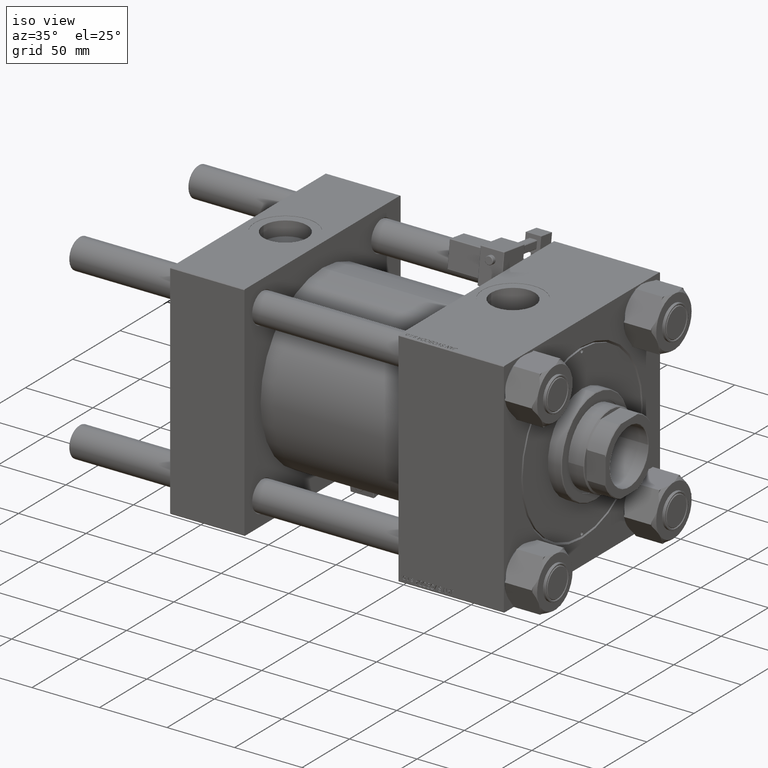
[diagram: clean part render]
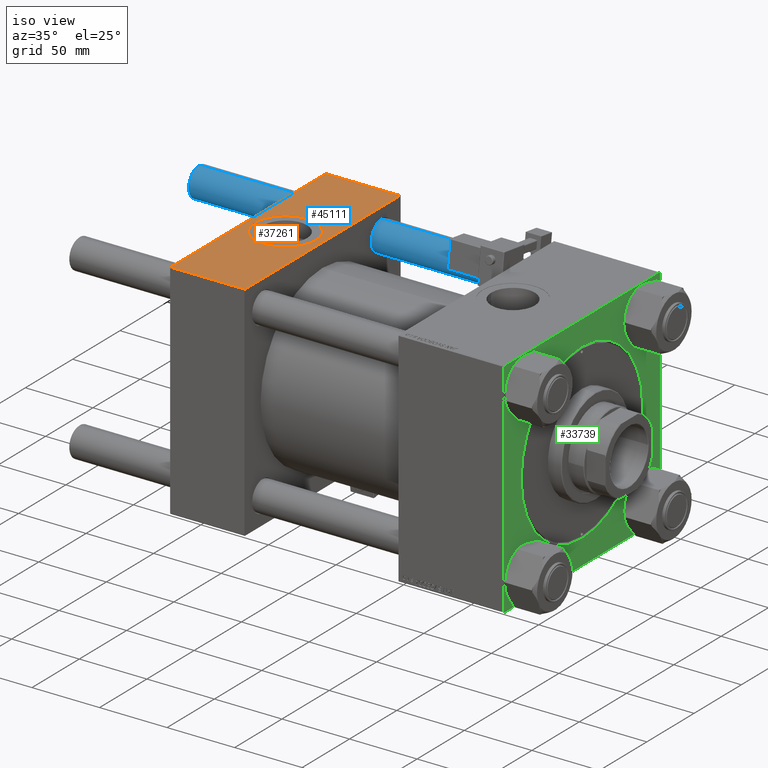
[diagram: same view with three faces highlighted in distinct colors, each labeled with its STEP entity id]
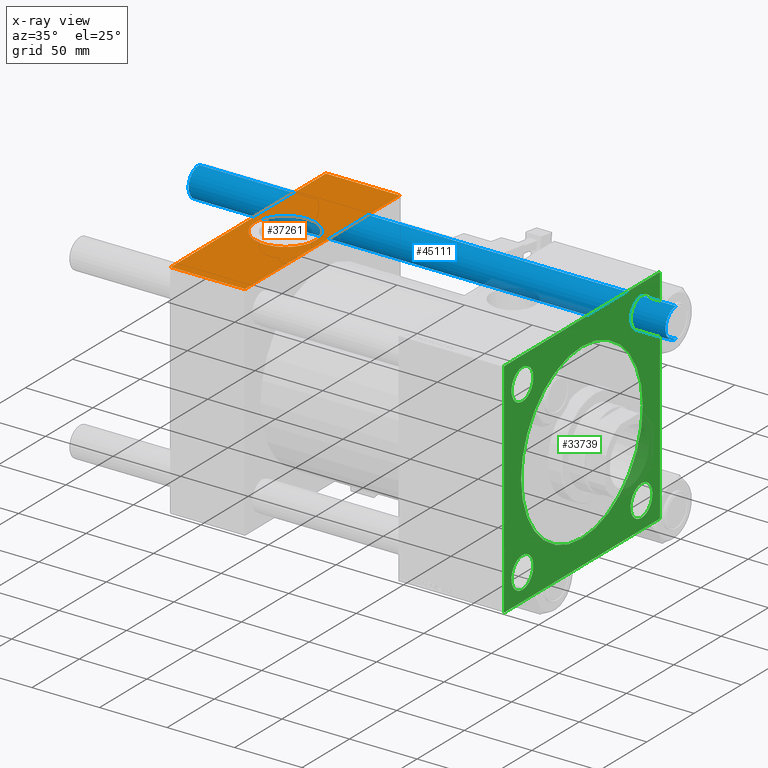
[diagram: x-ray of the same camera — body ghosted, the three highlighted faces saturated]
A machine part, iso view with three faces highlighted in distinct colors.
The next image is the same camera in x-ray (body ghosted, the three faces saturated) — at least one of them is partly hidden behind the body in this view.
Their STEP definitions:

[orange] entity #37261 — the highlighted planar face has unit normal (0, 0, -1).
#2128 = CARTESIAN_POINT ( 'NONE',  ( 0.000000000000000000, 82.00000000000005684, 82.50000000000002842 ) ) ;
#2393 = CARTESIAN_POINT ( 'NONE',  ( 0.000000000000000000, 82.00000000000005684, 82.50000000000002842 ) ) ;
#3655 = CIRCLE ( 'NONE', #23240, 22.50000000000000355 ) ;
#4659 = LINE ( 'NONE', #21439, #45771 ) ;
#6060 = AXIS2_PLACEMENT_3D ( 'NONE', #45836, #12296, #25599 ) ;
#6437 = CARTESIAN_POINT ( 'NONE',  ( 55.00000000000000000, 82.50000000000002842, 82.50000000000002842 ) ) ;
#7556 = VERTEX_POINT ( 'NONE', #23558 ) ;
#7903 = EDGE_CURVE ( 'NONE', #12894, #27906, #23098, .T. ) ;
#8107 = DIRECTION ( 'NONE',  ( 1.000000000000000000, 0.000000000000000000, 0.000000000000000000 ) ) ;
#9623 = CARTESIAN_POINT ( 'NONE',  ( 27.50000000000000000, -8.673617379884037050E-15, 82.50000000000001421 ) ) ;
#9716 = CARTESIAN_POINT ( 'NONE',  ( 50.00000000000000000, -8.673617379884037050E-15, 82.50000000000001421 ) ) ;
#12296 = DIRECTION ( 'NONE',  ( 0.000000000000000000, 0.000000000000000000, 1.000000000000000000 ) ) ;
#12894 = VERTEX_POINT ( 'NONE', #25694 ) ;
#14163 = DIRECTION ( 'NONE',  ( 0.000000000000000000, -1.000000000000000000, -8.410780489584519171E-17 ) ) ;
#14367 = FACE_OUTER_BOUND ( 'NONE', #19214, .T. ) ;
#14901 = DIRECTION ( 'NONE',  ( 0.000000000000000000, 1.000000000000000000, 8.410780489584519171E-17 ) ) ;
#15532 = LINE ( 'NONE', #48545, #32258 ) ;
#18602 = AXIS2_PLACEMENT_3D ( 'NONE', #31152, #43141, #14901 ) ;
#18926 = EDGE_CURVE ( 'NONE', #7556, #23256, #38889, .T. ) ;
#19214 = EDGE_LOOP ( 'NONE', ( #25607, #40393, #50135, #41388 ) ) ;
#21439 = CARTESIAN_POINT ( 'NONE',  ( 55.00000000000000000, -81.99999999999997158, 82.50000000000001421 ) ) ;
#21863 = CARTESIAN_POINT ( 'NONE',  ( 55.00000000000000000, -81.99999999999997158, 82.50000000000001421 ) ) ;
#22379 = PLANE ( 'NONE',  #18602 ) ;
#22855 = ORIENTED_EDGE ( 'NONE', *, *, #46805, .F. ) ;
#22895 = FACE_BOUND ( 'NONE', #26462, .T. ) ;
#22951 = LINE ( 'NONE', #6437, #33058 ) ;
#23098 = CIRCLE ( 'NONE', #6060, 22.50000000000000355 ) ;
#23110 = VERTEX_POINT ( 'NONE', #21863 ) ;
#23240 = AXIS2_PLACEMENT_3D ( 'NONE', #9623, #25872, #8107 ) ;
#23256 = VERTEX_POINT ( 'NONE', #2128 ) ;
#23558 = CARTESIAN_POINT ( 'NONE',  ( 55.00000000000000000, 82.00000000000005684, 82.50000000000002842 ) ) ;
#25599 = DIRECTION ( 'NONE',  ( 1.000000000000000000, 0.000000000000000000, 0.000000000000000000 ) ) ;
#25607 = ORIENTED_EDGE ( 'NONE', *, *, #38478, .T. ) ;
#25694 = CARTESIAN_POINT ( 'NONE',  ( 4.999999999999993783, -5.918162081802491483E-15, 82.50000000000001421 ) ) ;
#25872 = DIRECTION ( 'NONE',  ( 0.000000000000000000, 0.000000000000000000, 1.000000000000000000 ) ) ;
#26462 = EDGE_LOOP ( 'NONE', ( #22855, #44991 ) ) ;
#27906 = VERTEX_POINT ( 'NONE', #9716 ) ;
#30710 = EDGE_CURVE ( 'NONE', #38590, #23110, #4659, .T. ) ;
#31152 = CARTESIAN_POINT ( 'NONE',  ( 55.00000000000000000, 82.50000000000002842, 82.50000000000002842 ) ) ;
#32258 = VECTOR ( 'NONE', #52279, 1000.000000000000000 ) ;
#33058 = VECTOR ( 'NONE', #14163, 1000.000000000000000 ) ;
#36195 = EDGE_CURVE ( 'NONE', #7556, #23110, #22951, .T. ) ;
#37261 = ADVANCED_FACE ( 'NONE', ( #22895, #14367 ), #22379, .F. ) ;
#38478 = EDGE_CURVE ( 'NONE', #23256, #38590, #15532, .T. ) ;
#38590 = VERTEX_POINT ( 'NONE', #42156 ) ;
#38889 = LINE ( 'NONE', #2393, #42073 ) ;
#40393 = ORIENTED_EDGE ( 'NONE', *, *, #30710, .T. ) ;
#41388 = ORIENTED_EDGE ( 'NONE', *, *, #18926, .T. ) ;
#41676 = DIRECTION ( 'NONE',  ( 1.000000000000000000, 0.000000000000000000, 0.000000000000000000 ) ) ;
#42073 = VECTOR ( 'NONE', #43152, 1000.000000000000000 ) ;
#42156 = CARTESIAN_POINT ( 'NONE',  ( 0.000000000000000000, -81.99999999999997158, 82.50000000000001421 ) ) ;
#43141 = DIRECTION ( 'NONE',  ( 0.000000000000000000, 8.410780489584519171E-17, -1.000000000000000000 ) ) ;
#43152 = DIRECTION ( 'NONE',  ( -1.000000000000000000, 0.000000000000000000, 0.000000000000000000 ) ) ;
#44991 = ORIENTED_EDGE ( 'NONE', *, *, #7903, .F. ) ;
#45771 = VECTOR ( 'NONE', #41676, 1000.000000000000000 ) ;
#45836 = CARTESIAN_POINT ( 'NONE',  ( 27.50000000000000000, -8.673617379884037050E-15, 82.50000000000001421 ) ) ;
#46805 = EDGE_CURVE ( 'NONE', #27906, #12894, #3655, .T. ) ;
#48545 = CARTESIAN_POINT ( 'NONE',  ( 0.000000000000000000, 82.50000000000002842, 82.50000000000002842 ) ) ;
#50135 = ORIENTED_EDGE ( 'NONE', *, *, #36195, .F. ) ;
#52279 = DIRECTION ( 'NONE',  ( 0.000000000000000000, -1.000000000000000000, -8.410780489584519171E-17 ) ) ;

[blue] entity #45111 — the highlighted cylindrical surface (edge-blend (fillet) strip) has radius 11 mm, axis along (-1, -0, -0).
#3055 = DIRECTION ( 'NONE',  ( 1.000000000000000000, 0.000000000000000000, 0.000000000000000000 ) ) ;
#3921 = DIRECTION ( 'NONE',  ( -0.000000000000000000, -0.000000000000000000, -1.000000000000000000 ) ) ;
#4369 = DIRECTION ( 'NONE',  ( 1.000000000000000000, 0.000000000000000000, 0.000000000000000000 ) ) ;
#7835 = DIRECTION ( 'NONE',  ( 0.000000000000000000, 0.000000000000000000, -1.000000000000000000 ) ) ;
#8132 = DIRECTION ( 'NONE',  ( -0.000000000000000000, -0.000000000000000000, -1.000000000000000000 ) ) ;
#8873 = CIRCLE ( 'NONE', #34424, 11.00000000000000000 ) ;
#9620 = EDGE_LOOP ( 'NONE', ( #33986, #29284, #35812, #20055 ) ) ;
#10086 = CARTESIAN_POINT ( 'NONE',  ( -11.00000000000000000, 0.000000000000000000, 0.5000000000001114664 ) ) ;
#10750 = LINE ( 'NONE', #32044, #44269 ) ;
#12304 = CARTESIAN_POINT ( 'NONE',  ( 0.000000000000000000, 0.000000000000000000, 0.5000000000001114664 ) ) ;
#12384 = VECTOR ( 'NONE', #8132, 1000.000000000000000 ) ;
#16066 = VERTEX_POINT ( 'NONE', #10086 ) ;
#17186 = CARTESIAN_POINT ( 'NONE',  ( -11.00000000000000000, 0.000000000000000000, 353.5000000000000568 ) ) ;
#18115 = AXIS2_PLACEMENT_3D ( 'NONE', #44338, #7835, #4369 ) ;
#18637 = EDGE_CURVE ( 'NONE', #16066, #24030, #8873, .T. ) ;
#19447 = VERTEX_POINT ( 'NONE', #42773 ) ;
#20055 = ORIENTED_EDGE ( 'NONE', *, *, #18637, .T. ) ;
#21174 = CARTESIAN_POINT ( 'NONE',  ( -11.00000000000000000, 0.000000000000000000, 354.0000000000000000 ) ) ;
#23000 = DIRECTION ( 'NONE',  ( -0.000000000000000000, -0.000000000000000000, -1.000000000000000000 ) ) ;
#24030 = VERTEX_POINT ( 'NONE', #29019 ) ;
#25605 = EDGE_CURVE ( 'NONE', #36673, #16066, #29167, .T. ) ;
#28269 = AXIS2_PLACEMENT_3D ( 'NONE', #40677, #3921, #36404 ) ;
#29019 = CARTESIAN_POINT ( 'NONE',  ( 11.00000000000000000, 1.347111479062088405E-15, 0.5000000000001114664 ) ) ;
#29167 = LINE ( 'NONE', #21174, #12384 ) ;
#29284 = ORIENTED_EDGE ( 'NONE', *, *, #46880, .T. ) ;
#32044 = CARTESIAN_POINT ( 'NONE',  ( 11.00000000000000000, 1.347111479062088405E-15, 354.0000000000000000 ) ) ;
#33062 = DIRECTION ( 'NONE',  ( -0.000000000000000000, -0.000000000000000000, 1.000000000000000000 ) ) ;
#33986 = ORIENTED_EDGE ( 'NONE', *, *, #41043, .F. ) ;
#34424 = AXIS2_PLACEMENT_3D ( 'NONE', #12304, #33062, #3055 ) ;
#35812 = ORIENTED_EDGE ( 'NONE', *, *, #25605, .T. ) ;
#36404 = DIRECTION ( 'NONE',  ( -1.000000000000000000, 0.000000000000000000, 0.000000000000000000 ) ) ;
#36673 = VERTEX_POINT ( 'NONE', #17186 ) ;
#40677 = CARTESIAN_POINT ( 'NONE',  ( 0.000000000000000000, 0.000000000000000000, 354.0000000000000000 ) ) ;
#41043 = EDGE_CURVE ( 'NONE', #19447, #24030, #10750, .T. ) ;
#42773 = CARTESIAN_POINT ( 'NONE',  ( 11.00000000000000000, 1.347111479062088405E-15, 353.5000000000000568 ) ) ;
#44269 = VECTOR ( 'NONE', #23000, 1000.000000000000000 ) ;
#44338 = CARTESIAN_POINT ( 'NONE',  ( 0.000000000000000000, 0.000000000000000000, 353.5000000000000568 ) ) ;
#45111 = ADVANCED_FACE ( 'NONE', ( #52649 ), #48402, .T. ) ;
#46880 = EDGE_CURVE ( 'NONE', #19447, #36673, #48752, .T. ) ;
#48402 = CYLINDRICAL_SURFACE ( 'NONE', #28269, 11.00000000000000000 ) ;
#48752 = CIRCLE ( 'NONE', #18115, 11.00000000000000000 ) ;
#52649 = FACE_OUTER_BOUND ( 'NONE', #9620, .T. ) ;

[green] entity #33739 — the highlighted planar face has unit normal (-1, 0, 0).
#367 = EDGE_CURVE ( 'NONE', #7603, #32426, #20254, .T. ) ;
#387 = ORIENTED_EDGE ( 'NONE', *, *, #21691, .T. ) ;
#595 = DIRECTION ( 'NONE',  ( -1.000000000000000000, -0.000000000000000000, 0.000000000000000000 ) ) ;
#1123 = VECTOR ( 'NONE', #13540, 1000.000000000000000 ) ;
#1209 = DIRECTION ( 'NONE',  ( 0.000000000000000000, 0.000000000000000000, 1.000000000000000000 ) ) ;
#1259 = ORIENTED_EDGE ( 'NONE', *, *, #49738, .T. ) ;
#1695 = FACE_BOUND ( 'NONE', #7015, .T. ) ;
#2137 = CARTESIAN_POINT ( 'NONE',  ( 247.0000000000000000, 81.99999999999995737, 82.50000000000000000 ) ) ;
#2269 = ORIENTED_EDGE ( 'NONE', *, *, #17421, .T. ) ;
#3141 = CARTESIAN_POINT ( 'NONE',  ( 247.0000000000000000, -62.94999999999998153, 51.45000000000000995 ) ) ;
#3710 = CIRCLE ( 'NONE', #4544, 11.50000000000001066 ) ;
#3838 = CIRCLE ( 'NONE', #51463, 11.50000000000001066 ) ;
#4051 = DIRECTION ( 'NONE',  ( 0.000000000000000000, 0.000000000000000000, 1.000000000000000000 ) ) ;
#4257 = CARTESIAN_POINT ( 'NONE',  ( 247.0000000000000000, 62.95000000000000284, -51.44999999999999574 ) ) ;
#4534 = DIRECTION ( 'NONE',  ( 0.000000000000000000, -1.682156097916903834E-16, -1.000000000000000000 ) ) ;
#4544 = AXIS2_PLACEMENT_3D ( 'NONE', #18383, #50617, #25862 ) ;
#5139 = CARTESIAN_POINT ( 'NONE',  ( 247.0000000000000000, -81.99999999999995737, 82.49999999999997158 ) ) ;
#5262 = LINE ( 'NONE', #9793, #21937 ) ;
#5448 = AXIS2_PLACEMENT_3D ( 'NONE', #17706, #34725, #1209 ) ;
#5728 = CARTESIAN_POINT ( 'NONE',  ( 247.0000000000000000, -62.94999999999998153, 74.45000000000003126 ) ) ;
#6844 = EDGE_LOOP ( 'NONE', ( #22074, #22592, #44700, #35331, #19047, #15460, #31609, #50530 ) ) ;
#6855 = VERTEX_POINT ( 'NONE', #29909 ) ;
#7015 = EDGE_LOOP ( 'NONE', ( #20679, #387 ) ) ;
#7603 = VERTEX_POINT ( 'NONE', #48050 ) ;
#7802 = CARTESIAN_POINT ( 'NONE',  ( 247.0000000000000000, 62.95000000000000284, 62.95000000000000284 ) ) ;
#7831 = AXIS2_PLACEMENT_3D ( 'NONE', #21436, #24909, #8919 ) ;
#7956 = VERTEX_POINT ( 'NONE', #42362 ) ;
#7983 = VERTEX_POINT ( 'NONE', #34367 ) ;
#8037 = EDGE_LOOP ( 'NONE', ( #1259, #14242 ) ) ;
#8919 = DIRECTION ( 'NONE',  ( 0.000000000000000000, 0.000000000000000000, 1.000000000000000000 ) ) ;
#9793 = CARTESIAN_POINT ( 'NONE',  ( 247.0000000000000000, 82.50000000000001421, -82.00000000000002842 ) ) ;
#10462 = FACE_BOUND ( 'NONE', #35192, .T. ) ;
#10463 = DIRECTION ( 'NONE',  ( -1.000000000000000000, -0.000000000000000000, 0.000000000000000000 ) ) ;
#10641 = EDGE_CURVE ( 'NONE', #7983, #44092, #25838, .T. ) ;
#11308 = CIRCLE ( 'NONE', #27469, 11.50000000000001066 ) ;
#11397 = VECTOR ( 'NONE', #48301, 1000.000000000000000 ) ;
#11818 = LINE ( 'NONE', #44312, #11397 ) ;
#11878 = CARTESIAN_POINT ( 'NONE',  ( 247.0000000000000000, 62.95000000000000284, -62.95000000000000284 ) ) ;
#12252 = VERTEX_POINT ( 'NONE', #48271 ) ;
#12813 = EDGE_CURVE ( 'NONE', #7956, #42345, #19746, .T. ) ;
#13540 = DIRECTION ( 'NONE',  ( 0.000000000000000000, -1.000000000000000000, 0.000000000000000000 ) ) ;
#13639 = EDGE_CURVE ( 'NONE', #40086, #23770, #15479, .T. ) ;
#13676 = ORIENTED_EDGE ( 'NONE', *, *, #367, .T. ) ;
#13742 = DIRECTION ( 'NONE',  ( -1.000000000000000000, -0.000000000000000000, 0.000000000000000000 ) ) ;
#14242 = ORIENTED_EDGE ( 'NONE', *, *, #51948, .T. ) ;
#14371 = CARTESIAN_POINT ( 'NONE',  ( 247.0000000000000000, 62.95000000000000284, 74.45000000000001705 ) ) ;
#14575 = LINE ( 'NONE', #43091, #1123 ) ;
#14797 = ORIENTED_EDGE ( 'NONE', *, *, #12813, .T. ) ;
#15460 = ORIENTED_EDGE ( 'NONE', *, *, #35417, .T. ) ;
#15479 = CIRCLE ( 'NONE', #41881, 11.50000000000001066 ) ;
#15692 = AXIS2_PLACEMENT_3D ( 'NONE', #45459, #13742, #49972 ) ;
#15768 = CARTESIAN_POINT ( 'NONE',  ( 247.0000000000000000, 62.95000000000000284, -74.45000000000001705 ) ) ;
#16319 = EDGE_CURVE ( 'NONE', #45852, #39409, #49725, .T. ) ;
#16383 = DIRECTION ( 'NONE',  ( -1.000000000000000000, -0.000000000000000000, 0.000000000000000000 ) ) ;
#17421 = EDGE_CURVE ( 'NONE', #42345, #7956, #28418, .T. ) ;
#17706 = CARTESIAN_POINT ( 'NONE',  ( 247.0000000000000000, -62.94999999999998153, -62.95000000000001705 ) ) ;
#17816 = VECTOR ( 'NONE', #18812, 1000.000000000000114 ) ;
#17921 = VERTEX_POINT ( 'NONE', #14371 ) ;
#18080 = CIRCLE ( 'NONE', #45307, 64.25000000000008527 ) ;
#18383 = CARTESIAN_POINT ( 'NONE',  ( 247.0000000000000000, -62.94999999999998153, 62.95000000000001705 ) ) ;
#18812 = DIRECTION ( 'NONE',  ( 0.000000000000000000, -0.7071067811865474617, 0.7071067811865474617 ) ) ;
#19047 = ORIENTED_EDGE ( 'NONE', *, *, #22775, .F. ) ;
#19243 = DIRECTION ( 'NONE',  ( 0.000000000000000000, 0.000000000000000000, 1.000000000000000000 ) ) ;
#19746 = CIRCLE ( 'NONE', #7831, 11.50000000000006573 ) ;
#19895 = EDGE_CURVE ( 'NONE', #39409, #7983, #43362, .T. ) ;
#20229 = CARTESIAN_POINT ( 'NONE',  ( 247.0000000000000000, -82.50000000000000000, -82.00000000000000000 ) ) ;
#20254 = CIRCLE ( 'NONE', #31306, 64.25000000000008527 ) ;
#20303 = CARTESIAN_POINT ( 'NONE',  ( 247.0000000000000000, 0.000000000000000000, 0.000000000000000000 ) ) ;
#20679 = ORIENTED_EDGE ( 'NONE', *, *, #23626, .T. ) ;
#20921 = DIRECTION ( 'NONE',  ( -1.000000000000000000, -0.000000000000000000, 0.000000000000000000 ) ) ;
#21436 = CARTESIAN_POINT ( 'NONE',  ( 247.0000000000000000, -62.94999999999998153, -62.95000000000001705 ) ) ;
#21691 = EDGE_CURVE ( 'NONE', #17921, #6855, #3838, .T. ) ;
#21937 = VECTOR ( 'NONE', #45755, 1000.000000000000114 ) ;
#22074 = ORIENTED_EDGE ( 'NONE', *, *, #10641, .T. ) ;
#22198 = CARTESIAN_POINT ( 'NONE',  ( 247.0000000000000000, 0.000000000000000000, 0.000000000000000000 ) ) ;
#22592 = ORIENTED_EDGE ( 'NONE', *, *, #42971, .T. ) ;
#22775 = EDGE_CURVE ( 'NONE', #26107, #36681, #11818, .T. ) ;
#22829 = CARTESIAN_POINT ( 'NONE',  ( 247.0000000000000000, 0.000000000000000000, -64.25000000000008527 ) ) ;
#23626 = EDGE_CURVE ( 'NONE', #6855, #17921, #48888, .T. ) ;
#23770 = VERTEX_POINT ( 'NONE', #15768 ) ;
#24775 = VECTOR ( 'NONE', #28484, 999.9999999999998863 ) ;
#24909 = DIRECTION ( 'NONE',  ( -1.000000000000000000, -0.000000000000000000, 0.000000000000000000 ) ) ;
#25838 = LINE ( 'NONE', #41026, #27311 ) ;
#25862 = DIRECTION ( 'NONE',  ( 0.000000000000000000, 0.000000000000000000, 1.000000000000000000 ) ) ;
#26107 = VERTEX_POINT ( 'NONE', #33366 ) ;
#26708 = DIRECTION ( 'NONE',  ( -1.000000000000000000, -0.000000000000000000, 0.000000000000000000 ) ) ;
#27311 = VECTOR ( 'NONE', #4534, 1000.000000000000000 ) ;
#27469 = AXIS2_PLACEMENT_3D ( 'NONE', #39237, #34708, #34458 ) ;
#27610 = LINE ( 'NONE', #43321, #17816 ) ;
#27802 = DIRECTION ( 'NONE',  ( -1.000000000000000000, -0.000000000000000000, 0.000000000000000000 ) ) ;
#28418 = CIRCLE ( 'NONE', #5448, 11.50000000000006573 ) ;
#28484 = DIRECTION ( 'NONE',  ( 0.000000000000000000, 0.7071067811865376918, -0.7071067811865574537 ) ) ;
#29212 = EDGE_LOOP ( 'NONE', ( #43429, #13676 ) ) ;
#29456 = VERTEX_POINT ( 'NONE', #3141 ) ;
#29909 = CARTESIAN_POINT ( 'NONE',  ( 247.0000000000000000, 62.95000000000000284, 51.44999999999999574 ) ) ;
#30441 = FACE_BOUND ( 'NONE', #40803, .T. ) ;
#31306 = AXIS2_PLACEMENT_3D ( 'NONE', #32896, #20921, #45418 ) ;
#31413 = EDGE_CURVE ( 'NONE', #12252, #36681, #5262, .T. ) ;
#31609 = ORIENTED_EDGE ( 'NONE', *, *, #16319, .T. ) ;
#31763 = VECTOR ( 'NONE', #37469, 1000.000000000000000 ) ;
#32054 = DIRECTION ( 'NONE',  ( 0.000000000000000000, 0.000000000000000000, 1.000000000000000000 ) ) ;
#32324 = CARTESIAN_POINT ( 'NONE',  ( 247.0000000000000000, -81.99999999999998579, -82.50000000000002842 ) ) ;
#32426 = VERTEX_POINT ( 'NONE', #22829 ) ;
#32896 = CARTESIAN_POINT ( 'NONE',  ( 247.0000000000000000, 0.000000000000000000, 0.000000000000000000 ) ) ;
#33366 = CARTESIAN_POINT ( 'NONE',  ( 247.0000000000000000, 82.50000000000001421, 81.99999999999994316 ) ) ;
#33739 = ADVANCED_FACE ( 'NONE', ( #30441, #10462, #1695, #46689, #34951, #38433 ), #51196, .F. ) ;
#34126 = DIRECTION ( 'NONE',  ( -0.000000000000000000, -0.7071067811865574537, -0.7071067811865376918 ) ) ;
#34181 = DIRECTION ( 'NONE',  ( 0.000000000000000000, 0.000000000000000000, 1.000000000000000000 ) ) ;
#34367 = CARTESIAN_POINT ( 'NONE',  ( 247.0000000000000000, -82.49999999999997158, 81.99999999999997158 ) ) ;
#34458 = DIRECTION ( 'NONE',  ( 0.000000000000000000, 0.000000000000000000, 1.000000000000000000 ) ) ;
#34708 = DIRECTION ( 'NONE',  ( -1.000000000000000000, -0.000000000000000000, 0.000000000000000000 ) ) ;
#34725 = DIRECTION ( 'NONE',  ( -1.000000000000000000, -0.000000000000000000, 0.000000000000000000 ) ) ;
#34951 = FACE_BOUND ( 'NONE', #29212, .T. ) ;
#35192 = EDGE_LOOP ( 'NONE', ( #42491, #52661 ) ) ;
#35331 = ORIENTED_EDGE ( 'NONE', *, *, #31413, .T. ) ;
#35417 = EDGE_CURVE ( 'NONE', #26107, #45852, #27610, .T. ) ;
#36681 = VERTEX_POINT ( 'NONE', #50210 ) ;
#36892 = VERTEX_POINT ( 'NONE', #32324 ) ;
#36899 = DIRECTION ( 'NONE',  ( 0.000000000000000000, 0.000000000000000000, 1.000000000000000000 ) ) ;
#37469 = DIRECTION ( 'NONE',  ( 0.000000000000000000, -1.000000000000000000, -1.682156097916904081E-16 ) ) ;
#38433 = FACE_OUTER_BOUND ( 'NONE', #6844, .T. ) ;
#39172 = VERTEX_POINT ( 'NONE', #5728 ) ;
#39237 = CARTESIAN_POINT ( 'NONE',  ( 247.0000000000000000, -62.94999999999998153, 62.95000000000001705 ) ) ;
#39359 = CARTESIAN_POINT ( 'NONE',  ( 247.0000000000000000, -82.49999999999997158, 81.99999999999997158 ) ) ;
#39409 = VERTEX_POINT ( 'NONE', #5139 ) ;
#40086 = VERTEX_POINT ( 'NONE', #4257 ) ;
#40726 = LINE ( 'NONE', #45248, #24775 ) ;
#40803 = EDGE_LOOP ( 'NONE', ( #14797, #2269 ) ) ;
#41026 = CARTESIAN_POINT ( 'NONE',  ( 247.0000000000000000, -82.49999999999997158, 82.49999999999997158 ) ) ;
#41881 = AXIS2_PLACEMENT_3D ( 'NONE', #11878, #16383, #36899 ) ;
#42041 = AXIS2_PLACEMENT_3D ( 'NONE', #51465, #10463, #19243 ) ;
#42345 = VERTEX_POINT ( 'NONE', #49549 ) ;
#42362 = CARTESIAN_POINT ( 'NONE',  ( 247.0000000000000000, -62.94999999999998153, -74.45000000000008811 ) ) ;
#42491 = ORIENTED_EDGE ( 'NONE', *, *, #50712, .T. ) ;
#42943 = VECTOR ( 'NONE', #34126, 999.9999999999998863 ) ;
#42971 = EDGE_CURVE ( 'NONE', #44092, #36892, #40726, .T. ) ;
#43091 = CARTESIAN_POINT ( 'NONE',  ( 247.0000000000000000, 82.50000000000001421, -82.50000000000002842 ) ) ;
#43321 = CARTESIAN_POINT ( 'NONE',  ( 247.0000000000000000, 81.99999999999995737, 82.50000000000000000 ) ) ;
#43362 = LINE ( 'NONE', #39359, #42943 ) ;
#43429 = ORIENTED_EDGE ( 'NONE', *, *, #47786, .T. ) ;
#44092 = VERTEX_POINT ( 'NONE', #20229 ) ;
#44312 = CARTESIAN_POINT ( 'NONE',  ( 247.0000000000000000, 82.50000000000001421, 82.50000000000000000 ) ) ;
#44700 = ORIENTED_EDGE ( 'NONE', *, *, #46290, .F. ) ;
#45248 = CARTESIAN_POINT ( 'NONE',  ( 247.0000000000000000, -81.99999999999998579, -82.50000000000002842 ) ) ;
#45307 = AXIS2_PLACEMENT_3D ( 'NONE', #20303, #595, #4051 ) ;
#45418 = DIRECTION ( 'NONE',  ( 0.000000000000000000, 0.000000000000000000, 1.000000000000000000 ) ) ;
#45459 = CARTESIAN_POINT ( 'NONE',  ( 247.0000000000000000, 62.95000000000000284, 62.95000000000000284 ) ) ;
#45475 = CARTESIAN_POINT ( 'NONE',  ( 247.0000000000000000, 82.50000000000001421, 82.50000000000000000 ) ) ;
#45755 = DIRECTION ( 'NONE',  ( -0.000000000000000000, 0.7071067811865474617, 0.7071067811865474617 ) ) ;
#45852 = VERTEX_POINT ( 'NONE', #2137 ) ;
#46290 = EDGE_CURVE ( 'NONE', #12252, #36892, #14575, .T. ) ;
#46689 = FACE_BOUND ( 'NONE', #8037, .T. ) ;
#47540 = AXIS2_PLACEMENT_3D ( 'NONE', #22198, #26708, #34181 ) ;
#47786 = EDGE_CURVE ( 'NONE', #32426, #7603, #18080, .T. ) ;
#48050 = CARTESIAN_POINT ( 'NONE',  ( 247.0000000000000000, 7.868355684521755357E-15, 64.25000000000008527 ) ) ;
#48271 = CARTESIAN_POINT ( 'NONE',  ( 247.0000000000000000, 82.00000000000001421, -82.50000000000002842 ) ) ;
#48301 = DIRECTION ( 'NONE',  ( 0.000000000000000000, 0.000000000000000000, -1.000000000000000000 ) ) ;
#48888 = CIRCLE ( 'NONE', #15692, 11.50000000000001066 ) ;
#49549 = CARTESIAN_POINT ( 'NONE',  ( 247.0000000000000000, -62.94999999999998153, -51.44999999999995310 ) ) ;
#49725 = LINE ( 'NONE', #45475, #31763 ) ;
#49738 = EDGE_CURVE ( 'NONE', #29456, #39172, #3710, .T. ) ;
#49972 = DIRECTION ( 'NONE',  ( 0.000000000000000000, 0.000000000000000000, 1.000000000000000000 ) ) ;
#50210 = CARTESIAN_POINT ( 'NONE',  ( 247.0000000000000000, 82.50000000000001421, -82.00000000000002842 ) ) ;
#50530 = ORIENTED_EDGE ( 'NONE', *, *, #19895, .T. ) ;
#50617 = DIRECTION ( 'NONE',  ( -1.000000000000000000, -0.000000000000000000, 0.000000000000000000 ) ) ;
#50712 = EDGE_CURVE ( 'NONE', #23770, #40086, #52212, .T. ) ;
#51196 = PLANE ( 'NONE',  #47540 ) ;
#51463 = AXIS2_PLACEMENT_3D ( 'NONE', #7802, #27802, #32054 ) ;
#51465 = CARTESIAN_POINT ( 'NONE',  ( 247.0000000000000000, 62.95000000000000284, -62.95000000000000284 ) ) ;
#51948 = EDGE_CURVE ( 'NONE', #39172, #29456, #11308, .T. ) ;
#52212 = CIRCLE ( 'NONE', #42041, 11.50000000000001066 ) ;
#52661 = ORIENTED_EDGE ( 'NONE', *, *, #13639, .T. ) ;